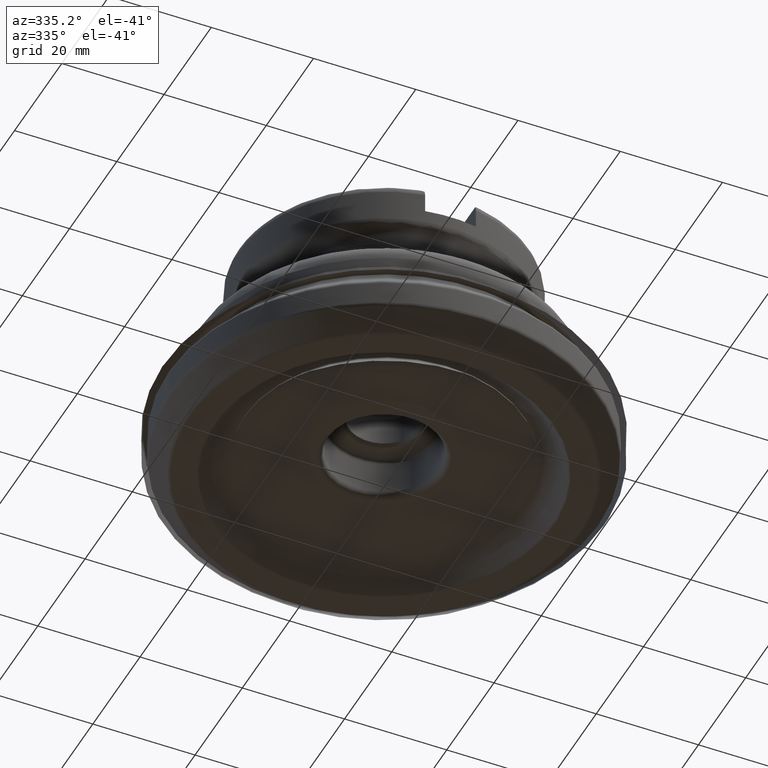
[diagram: clean part render]
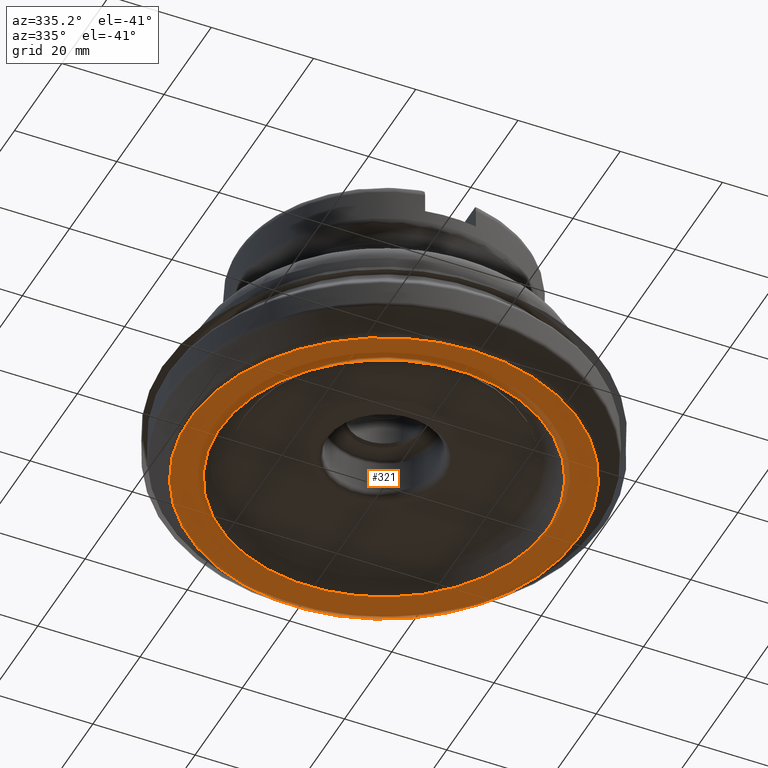
[diagram: same view with one face highlighted and labeled with its STEP entity id]
A machine part, auxiliary view. The second image highlights one B-rep face of the part: STEP entity #321.
In plain terms, the highlighted face is a SurfaceOfRevolution surface.
Its self-contained STEP definition (entity closure, byte-faithful):
#133=SURFACE_OF_REVOLUTION('',#231,#155);
#155=AXIS1_PLACEMENT('',#1912,#1372);
#231=LINE('',#1911,#259);
#259=VECTOR('',#1371,5.97815706144227);
#321=ADVANCED_FACE('',(#426,#427),#133,.F.);
#426=FACE_BOUND('',#542,.T.);
#427=FACE_BOUND('',#543,.T.);
#542=EDGE_LOOP('',(#736));
#543=EDGE_LOOP('',(#737));
#736=ORIENTED_EDGE('',*,*,#923,.T.);
#737=ORIENTED_EDGE('',*,*,#924,.F.);
#826=VERTEX_POINT('',#1903);
#827=VERTEX_POINT('',#1910);
#923=EDGE_CURVE('',#826,#826,#980,.T.);
#924=EDGE_CURVE('',#827,#827,#981,.T.);
#980=CIRCLE('',#1128,38.1);
#981=CIRCLE('',#1129,32.1243189435413);
#1128=AXIS2_PLACEMENT_3D('',#1902,#1366,#1367);
#1129=AXIS2_PLACEMENT_3D('',#1909,#1369,#1370);
#1366=DIRECTION('',(1.17145536458252E-15,0.,1.));
#1367=DIRECTION('',(1.,0.,-1.17145536458252E-15));
#1369=DIRECTION('',(1.17145536458252E-15,0.,1.));
#1370=DIRECTION('',(1.,0.,-1.17144833005651E-15));
#1371=DIRECTION('',(-7.64633601271712E-17,-0.999994403756936,-0.00334551263783202));
#1372=DIRECTION('',(1.17145536458252E-15,0.,1.));
#1902=CARTESIAN_POINT('',(3.66342868282471E-30,0.,3.12724564126288E-15));
#1903=CARTESIAN_POINT('',(38.1,0.,-4.15052037493313E-14));
#1909=CARTESIAN_POINT('',(2.34291075200163E-17,0.,0.0200000001949419));
#1910=CARTESIAN_POINT('',(32.1243189435413,0.,0.0200000001949043));
#1911=CARTESIAN_POINT('',(1.,-32.1087507732802,0.0200000000000018));
#1912=CARTESIAN_POINT('',(0.,0.,0.));